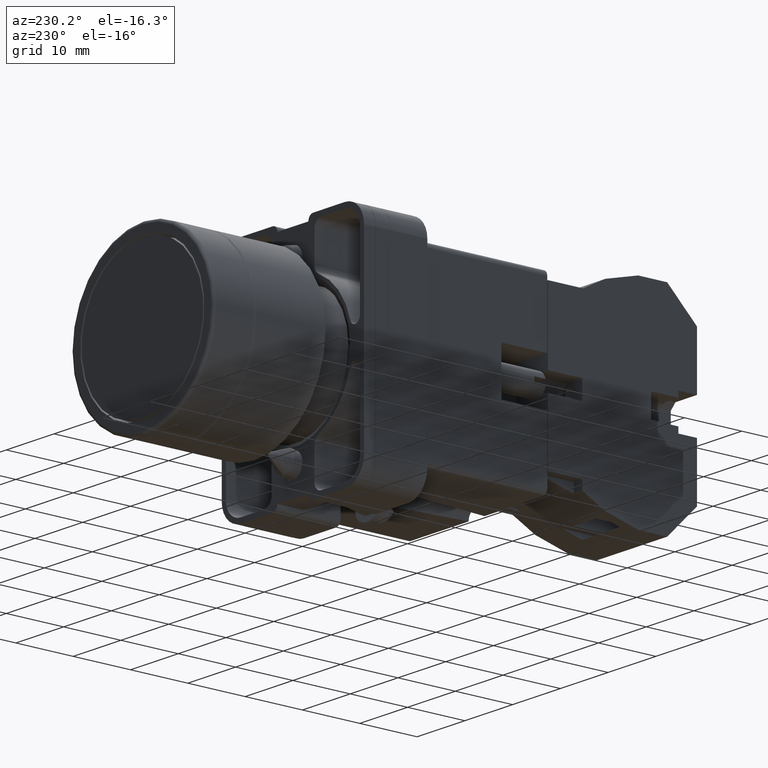
[diagram: clean part render]
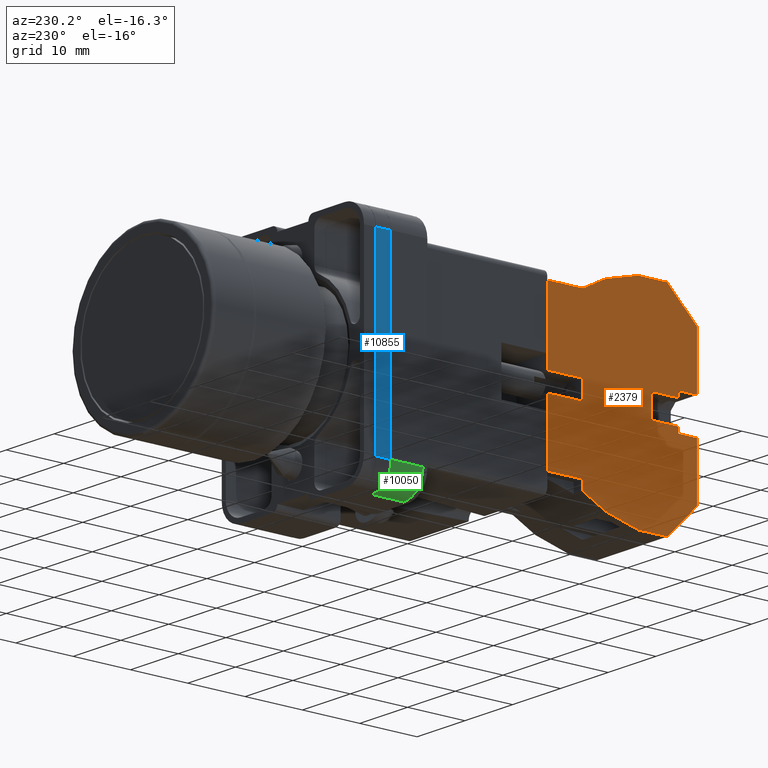
[diagram: same view with three faces highlighted in distinct colors, each labeled with its STEP entity id]
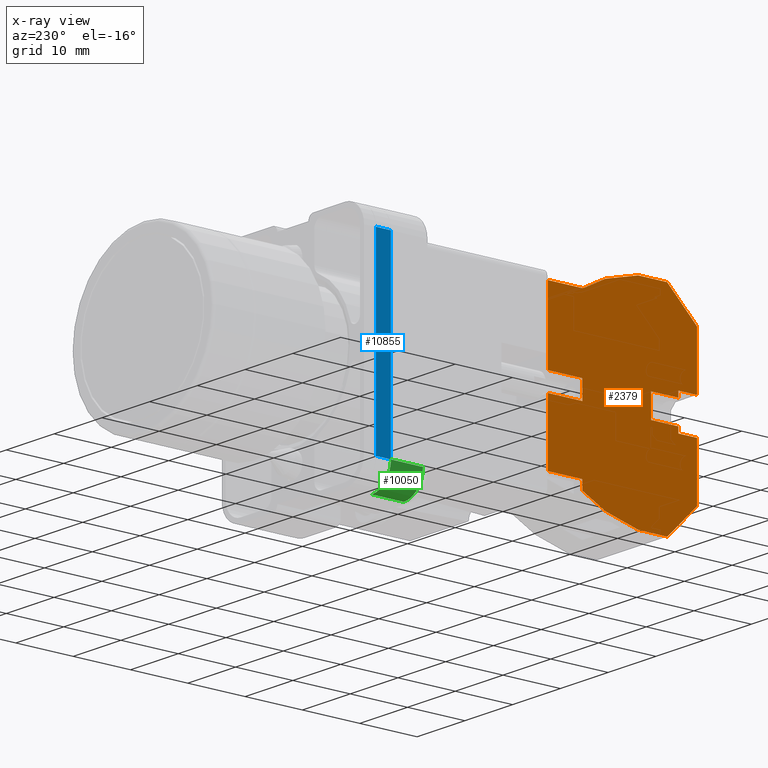
[diagram: x-ray of the same camera — body ghosted, the three highlighted faces saturated]
A machine part, auxiliary view with three faces highlighted in distinct colors.
The next image is the same camera in x-ray (body ghosted, the three faces saturated) — at least one of them is partly hidden behind the body in this view.
Their STEP definitions:

[orange] entity #2379 — the highlighted planar face has unit normal (-1, 0, -0).
#13 = CARTESIAN_POINT ( 'NONE',  ( 0.2598425196850383500, 0.07874015748031465400, -0.8956692913385810900 ) ) ;
#50 = CARTESIAN_POINT ( 'NONE',  ( 0.2598425196850393500, -0.4948044124201464400, -1.023622047244092900 ) ) ;
#67 = DIRECTION ( 'NONE',  ( 0.0000000000000000000, 1.000000000000000000, 1.380266588722641500E-016 ) ) ;
#92 = LINE ( 'NONE', #11499, #8486 ) ;
#273 = VERTEX_POINT ( 'NONE', #8449 ) ;
#291 = ORIENTED_EDGE ( 'NONE', *, *, #1015, .F. ) ;
#331 = CARTESIAN_POINT ( 'NONE',  ( 0.2598425196850393500, -0.6393838401749258900, -0.3953655489188578900 ) ) ;
#428 = CARTESIAN_POINT ( 'NONE',  ( 0.2598425196850241400, -0.5577858387056741100, -0.2362204724409449100 ) ) ;
#512 = ORIENTED_EDGE ( 'NONE', *, *, #8279, .F. ) ;
#638 = CARTESIAN_POINT ( 'NONE',  ( 0.2598425196850393500, 0.4948044124201465600, -1.023622047244091600 ) ) ;
#660 = DIRECTION ( 'NONE',  ( 0.0000000000000000000, 0.2588190451025197400, -0.9659258262890685300 ) ) ;
#838 = CARTESIAN_POINT ( 'NONE',  ( 0.2598425196850393500, -0.6995288218689645900, 0.0000000000000000000 ) ) ;
#871 = LINE ( 'NONE', #1747, #13055 ) ;
#997 = DIRECTION ( 'NONE',  ( -0.0000000000000000000, -0.0000000000000000000, 1.000000000000000000 ) ) ;
#1015 = EDGE_CURVE ( 'NONE', #6109, #6271, #5316, .T. ) ;
#1173 = VECTOR ( 'NONE', #7162, 39.37007874015748100 ) ;
#1330 = CARTESIAN_POINT ( 'NONE',  ( 0.2598425196850383500, 0.1181102362204726100, -1.023622047244092900 ) ) ;
#1347 = ORIENTED_EDGE ( 'NONE', *, *, #5021, .F. ) ;
#1349 = VECTOR ( 'NONE', #9872, 39.37007874015748100 ) ;
#1352 = CARTESIAN_POINT ( 'NONE',  ( 0.2598425196850393500, 0.7592132298321191400, -0.7592132298321189200 ) ) ;
#1370 = ORIENTED_EDGE ( 'NONE', *, *, #12649, .F. ) ;
#1410 = VECTOR ( 'NONE', #4995, 39.37007874015748100 ) ;
#1539 = VECTOR ( 'NONE', #9555, 39.37007874015748100 ) ;
#1612 = VECTOR ( 'NONE', #3023, 39.37007874015748900 ) ;
#1732 = EDGE_CURVE ( 'NONE', #3334, #13837, #4788, .T. ) ;
#1747 = CARTESIAN_POINT ( 'NONE',  ( 0.2598425196850383500, -0.07874015748031520900, -0.7086614173228329400 ) ) ;
#1755 = VERTEX_POINT ( 'NONE', #4335 ) ;
#1768 = ORIENTED_EDGE ( 'NONE', *, *, #1732, .F. ) ;
#1798 = VECTOR ( 'NONE', #1853, 39.37007874015748100 ) ;
#1853 = DIRECTION ( 'NONE',  ( 0.0000000000000000000, 0.4648420457246171800, 0.8853936257544171600 ) ) ;
#1875 = CARTESIAN_POINT ( 'NONE',  ( 0.2598425196850241400, 0.06299212598425156500, -0.2362204724409449100 ) ) ;
#1876 = CARTESIAN_POINT ( 'NONE',  ( 0.2598425196850384100, -0.1181102362204745300, -1.023622047244092900 ) ) ;
#1922 = CARTESIAN_POINT ( 'NONE',  ( 0.2598425196850393500, -0.7592132298321195800, -0.7592132298321195800 ) ) ;
#2013 = VECTOR ( 'NONE', #5988, 39.37007874015748900 ) ;
#2129 = ORIENTED_EDGE ( 'NONE', *, *, #11041, .F. ) ;
#2218 = DIRECTION ( 'NONE',  ( 1.000000000000000000, -0.0000000000000000000, 0.0000000000000000000 ) ) ;
#2229 = VECTOR ( 'NONE', #7375, 39.37007874015748100 ) ;
#2241 = LINE ( 'NONE', #5281, #7760 ) ;
#2309 = DIRECTION ( 'NONE',  ( -0.0000000000000000000, -0.0000000000000000000, 1.000000000000000000 ) ) ;
#2379 = ADVANCED_FACE ( 'NONE', ( #9128 ), #8840, .T. ) ;
#2425 = VECTOR ( 'NONE', #2681, 39.37007874015748100 ) ;
#2522 = DIRECTION ( 'NONE',  ( 0.0000000000000000000, 0.0000000000000000000, 1.000000000000000000 ) ) ;
#2592 = DIRECTION ( 'NONE',  ( -0.0000000000000000000, -0.0000000000000000000, 1.000000000000000000 ) ) ;
#2646 = VECTOR ( 'NONE', #10418, 39.37007874015748100 ) ;
#2650 = VERTEX_POINT ( 'NONE', #7054 ) ;
#2666 = CARTESIAN_POINT ( 'NONE',  ( 0.2598425196850393500, -0.4616588017403119900, 0.1237011031050369300 ) ) ;
#2681 = DIRECTION ( 'NONE',  ( 0.0000000000000000000, 0.0000000000000000000, -1.000000000000000000 ) ) ;
#2690 = DIRECTION ( 'NONE',  ( 1.445602896647325400E-016, -1.000000000000000000, 0.0000000000000000000 ) ) ;
#2695 = CARTESIAN_POINT ( 'NONE',  ( 0.2598425196850393500, -0.4977118570381174900, 0.1333614901567568600 ) ) ;
#2705 = LINE ( 'NONE', #10451, #5252 ) ;
#2730 = EDGE_CURVE ( 'NONE', #8224, #7018, #871, .T. ) ;
#2796 = VERTEX_POINT ( 'NONE', #7867 ) ;
#2807 = CARTESIAN_POINT ( 'NONE',  ( 0.2598425196850393500, 1.554158442419976800E-015, -1.023622047244092200 ) ) ;
#3023 = DIRECTION ( 'NONE',  ( 0.0000000000000000000, -0.7071067811865474600, 0.7071067811865474600 ) ) ;
#3065 = ORIENTED_EDGE ( 'NONE', *, *, #3629, .T. ) ;
#3125 = ORIENTED_EDGE ( 'NONE', *, *, #6125, .F. ) ;
#3154 = CARTESIAN_POINT ( 'NONE',  ( 0.2598425196850383500, 0.1181102362204726100, -0.8956692913385810900 ) ) ;
#3325 = VERTEX_POINT ( 'NONE', #1330 ) ;
#3334 = VERTEX_POINT ( 'NONE', #7894 ) ;
#3442 = DIRECTION ( 'NONE',  ( 0.0000000000000000000, 0.4648420457246347200, -0.8853936257544079400 ) ) ;
#3509 = ORIENTED_EDGE ( 'NONE', *, *, #11212, .T. ) ;
#3557 = VECTOR ( 'NONE', #11323, 39.37007874015748900 ) ;
#3591 = CARTESIAN_POINT ( 'NONE',  ( 0.2598425196850241400, 0.5577858387056733300, 0.0000000000000000000 ) ) ;
#3629 = EDGE_CURVE ( 'NONE', #5591, #12239, #8241, .T. ) ;
#3823 = EDGE_CURVE ( 'NONE', #7155, #12796, #13390, .T. ) ;
#4019 = EDGE_CURVE ( 'NONE', #1755, #2650, #8949, .T. ) ;
#4098 = EDGE_CURVE ( 'NONE', #10101, #4836, #10525, .T. ) ;
#4139 = VECTOR ( 'NONE', #660, 39.37007874015748100 ) ;
#4253 = VERTEX_POINT ( 'NONE', #3591 ) ;
#4335 = CARTESIAN_POINT ( 'NONE',  ( 0.2598425196850393500, 0.6995288218689655900, -0.6198296764213095900 ) ) ;
#4343 = VECTOR ( 'NONE', #2522, 39.37007874015748100 ) ;
#4378 = EDGE_CURVE ( 'NONE', #5591, #7976, #8935, .T. ) ;
#4408 = VECTOR ( 'NONE', #7939, 39.37007874015748900 ) ;
#4499 = LINE ( 'NONE', #1922, #1612 ) ;
#4607 = CARTESIAN_POINT ( 'NONE',  ( 0.2598425196850241400, 0.06299212598425156500, -0.2362204724409449100 ) ) ;
#4788 = LINE ( 'NONE', #838, #2229 ) ;
#4835 = EDGE_CURVE ( 'NONE', #8125, #4836, #12851, .T. ) ;
#4836 = VERTEX_POINT ( 'NONE', #8692 ) ;
#4924 = ORIENTED_EDGE ( 'NONE', *, *, #4835, .T. ) ;
#4926 = VECTOR ( 'NONE', #13319, 39.37007874015748100 ) ;
#4995 = DIRECTION ( 'NONE',  ( 0.0000000000000000000, -1.000000000000000000, -1.518293247594904000E-015 ) ) ;
#5021 = EDGE_CURVE ( 'NONE', #6360, #273, #7338, .T. ) ;
#5112 = CARTESIAN_POINT ( 'NONE',  ( 0.2598425196850383500, -0.07874015748031520900, -0.7086614173228329400 ) ) ;
#5188 = EDGE_CURVE ( 'NONE', #6364, #9400, #2705, .T. ) ;
#5252 = VECTOR ( 'NONE', #2690, 39.37007874015748100 ) ;
#5281 = CARTESIAN_POINT ( 'NONE',  ( 0.2598425196850393500, 1.554158442419976800E-015, -1.023622047244092200 ) ) ;
#5316 = LINE ( 'NONE', #13810, #2425 ) ;
#5543 = EDGE_LOOP ( 'NONE', ( #10078, #11393, #11339, #5695, #11175, #5911, #1347, #7873, #512, #9989, #12475, #4924, #12134, #1370, #13566, #3065, #11504, #6555, #3125, #1768, #6395, #2129, #291, #14334, #10272, #7739, #3509, #11699 ) ) ;
#5591 = VERTEX_POINT ( 'NONE', #12365 ) ;
#5695 = ORIENTED_EDGE ( 'NONE', *, *, #4019, .F. ) ;
#5757 = CARTESIAN_POINT ( 'NONE',  ( 0.2598425196850241400, 0.0000000000000000000, -0.2362204724409449100 ) ) ;
#5911 = ORIENTED_EDGE ( 'NONE', *, *, #9512, .F. ) ;
#5919 = CARTESIAN_POINT ( 'NONE',  ( 0.2598425196850393500, -0.5604642668738533100, -0.2450459128388126900 ) ) ;
#5988 = DIRECTION ( 'NONE',  ( 0.0000000000000000000, 0.2588190451025187400, 0.9659258262890687600 ) ) ;
#6001 = VECTOR ( 'NONE', #12268, 39.37007874015748100 ) ;
#6109 = VERTEX_POINT ( 'NONE', #9319 ) ;
#6125 = EDGE_CURVE ( 'NONE', #13837, #8576, #10856, .T. ) ;
#6271 = VERTEX_POINT ( 'NONE', #1876 ) ;
#6317 = DIRECTION ( 'NONE',  ( 0.0000000000000000000, 1.000000000000000000, 1.380266588722641500E-016 ) ) ;
#6360 = VERTEX_POINT ( 'NONE', #12029 ) ;
#6364 = VERTEX_POINT ( 'NONE', #3154 ) ;
#6395 = ORIENTED_EDGE ( 'NONE', *, *, #14173, .F. ) ;
#6426 = CARTESIAN_POINT ( 'NONE',  ( 0.2598425196850241400, -0.06299212598425235600, -0.2362204724409449100 ) ) ;
#6555 = ORIENTED_EDGE ( 'NONE', *, *, #7609, .F. ) ;
#6659 = CARTESIAN_POINT ( 'NONE',  ( 0.2598425196850318000, -0.4921259842519683500, -0.2362204724409449100 ) ) ;
#6815 = CARTESIAN_POINT ( 'NONE',  ( 0.2598425196850393500, 0.4616588017403134300, 0.1237011031050346800 ) ) ;
#6897 = CARTESIAN_POINT ( 'NONE',  ( 0.2598425196850318000, -0.4921259842519683500, 0.0000000000000000000 ) ) ;
#6928 = LINE ( 'NONE', #2666, #2646 ) ;
#7018 = VERTEX_POINT ( 'NONE', #8806 ) ;
#7054 = CARTESIAN_POINT ( 'NONE',  ( 0.2598425196850393500, 0.6995288218689655900, -0.8188976377952724700 ) ) ;
#7155 = VERTEX_POINT ( 'NONE', #4607 ) ;
#7162 = DIRECTION ( 'NONE',  ( 1.164969743826202400E-013, 1.000000000000000000, 0.0000000000000000000 ) ) ;
#7306 = VECTOR ( 'NONE', #2309, 39.37007874015748100 ) ;
#7308 = CARTESIAN_POINT ( 'NONE',  ( 0.2598425196850393500, -0.6995288218689645900, -0.6198296764213121500 ) ) ;
#7309 = CARTESIAN_POINT ( 'NONE',  ( 0.2598425196850393500, -0.3385070961627993400, 0.1777201986726979200 ) ) ;
#7338 = LINE ( 'NONE', #6815, #4408 ) ;
#7375 = DIRECTION ( 'NONE',  ( -0.0000000000000000000, 0.0000000000000000000, 1.000000000000000000 ) ) ;
#7379 = CARTESIAN_POINT ( 'NONE',  ( 0.2598425196850393500, 0.07874015748031469600, -0.7086614173228329400 ) ) ;
#7609 = EDGE_CURVE ( 'NONE', #8576, #11633, #13657, .T. ) ;
#7718 = CARTESIAN_POINT ( 'NONE',  ( 0.2598425196850393500, -9.426696277809412200E-033, 6.829619984160658000E-017 ) ) ;
#7739 = ORIENTED_EDGE ( 'NONE', *, *, #11969, .F. ) ;
#7760 = VECTOR ( 'NONE', #14258, 39.37007874015748100 ) ;
#7793 = LINE ( 'NONE', #14195, #11143 ) ;
#7867 = CARTESIAN_POINT ( 'NONE',  ( 0.2598425196850393500, 0.6393838401749257800, -0.3953655489188523900 ) ) ;
#7873 = ORIENTED_EDGE ( 'NONE', *, *, #13601, .T. ) ;
#7894 = CARTESIAN_POINT ( 'NONE',  ( 0.2598425196850393500, -0.6995288218689645900, -0.8188976377952748000 ) ) ;
#7939 = DIRECTION ( 'NONE',  ( 0.0000000000000000000, 0.2588190451025166300, -0.9659258262890693100 ) ) ;
#7976 = VERTEX_POINT ( 'NONE', #11357 ) ;
#8062 = CARTESIAN_POINT ( 'NONE',  ( 0.2598425196850383500, 0.1181102362204726100, -0.8956692913385810900 ) ) ;
#8079 = DIRECTION ( 'NONE',  ( 1.445602896647325400E-016, -1.000000000000000000, 0.0000000000000000000 ) ) ;
#8125 = VERTEX_POINT ( 'NONE', #11694 ) ;
#8128 = LINE ( 'NONE', #11645, #4139 ) ;
#8224 = VERTEX_POINT ( 'NONE', #5112 ) ;
#8241 = LINE ( 'NONE', #428, #13912 ) ;
#8279 = EDGE_CURVE ( 'NONE', #12796, #4253, #7793, .T. ) ;
#8449 = CARTESIAN_POINT ( 'NONE',  ( 0.2598425196850393500, 0.5604642668738515400, -0.2450459128388111600 ) ) ;
#8486 = VECTOR ( 'NONE', #8079, 39.37007874015748100 ) ;
#8576 = VERTEX_POINT ( 'NONE', #331 ) ;
#8586 = CARTESIAN_POINT ( 'NONE',  ( 0.2598425196850241400, 0.06299212598425156500, 0.0000000000000000000 ) ) ;
#8692 = CARTESIAN_POINT ( 'NONE',  ( 0.2598425196850241400, -0.06299212598425235600, 0.0000000000000000000 ) ) ;
#8757 = CARTESIAN_POINT ( 'NONE',  ( 0.2598425196850383500, 0.07874015748031465400, -0.7086614173228329400 ) ) ;
#8806 = CARTESIAN_POINT ( 'NONE',  ( 0.2598425196850383500, -0.07874015748031520900, -0.8956692913385810900 ) ) ;
#8840 = PLANE ( 'NONE',  #10595 ) ;
#8908 = CARTESIAN_POINT ( 'NONE',  ( 0.2598425196850383500, 0.07874015748031465400, -0.7086614173228329400 ) ) ;
#8935 = LINE ( 'NONE', #13928, #1173 ) ;
#8949 = LINE ( 'NONE', #12160, #4926 ) ;
#8999 = VECTOR ( 'NONE', #11475, 39.37007874015748100 ) ;
#9042 = VECTOR ( 'NONE', #3442, 39.37007874015748900 ) ;
#9128 = FACE_OUTER_BOUND ( 'NONE', #5543, .T. ) ;
#9146 = CARTESIAN_POINT ( 'NONE',  ( 0.2598425196850241400, 0.5577858387056733300, -19685.03937007874300 ) ) ;
#9319 = CARTESIAN_POINT ( 'NONE',  ( 0.2598425196850384100, -0.1181102362204745300, -0.8956692913385810900 ) ) ;
#9400 = VERTEX_POINT ( 'NONE', #13 ) ;
#9473 = DIRECTION ( 'NONE',  ( 0.0000000000000000000, 0.0000000000000000000, -1.000000000000000000 ) ) ;
#9512 = EDGE_CURVE ( 'NONE', #273, #2796, #12774, .T. ) ;
#9548 = VECTOR ( 'NONE', #12494, 39.37007874015748100 ) ;
#9555 = DIRECTION ( 'NONE',  ( -0.0000000000000000000, -0.0000000000000000000, 1.000000000000000000 ) ) ;
#9706 = LINE ( 'NONE', #8062, #8999 ) ;
#9822 = VECTOR ( 'NONE', #997, 39.37007874015748100 ) ;
#9841 = VERTEX_POINT ( 'NONE', #7379 ) ;
#9872 = DIRECTION ( 'NONE',  ( 0.0000000000000000000, -1.000000000000000000, 0.0000000000000000000 ) ) ;
#9979 = DIRECTION ( 'NONE',  ( 0.0000000000000000000, 0.0000000000000000000, -1.000000000000000000 ) ) ;
#9989 = ORIENTED_EDGE ( 'NONE', *, *, #3823, .F. ) ;
#10073 = EDGE_CURVE ( 'NONE', #8125, #7155, #12564, .T. ) ;
#10078 = ORIENTED_EDGE ( 'NONE', *, *, #10739, .T. ) ;
#10101 = VERTEX_POINT ( 'NONE', #6897 ) ;
#10160 = LINE ( 'NONE', #8757, #1349 ) ;
#10170 = EDGE_CURVE ( 'NONE', #7018, #6109, #92, .T. ) ;
#10226 = LINE ( 'NONE', #2807, #1410 ) ;
#10268 = EDGE_CURVE ( 'NONE', #2796, #1755, #8128, .T. ) ;
#10272 = ORIENTED_EDGE ( 'NONE', *, *, #2730, .F. ) ;
#10282 = LINE ( 'NONE', #9146, #4343 ) ;
#10318 = LINE ( 'NONE', #6659, #7306 ) ;
#10418 = DIRECTION ( 'NONE',  ( 0.0000000000000000000, 0.2588190451025217900, 0.9659258262890679800 ) ) ;
#10451 = CARTESIAN_POINT ( 'NONE',  ( 0.2598425196850383500, 3.756290991288310800E-017, -0.8956692913385810900 ) ) ;
#10525 = LINE ( 'NONE', #7718, #12846 ) ;
#10595 = AXIS2_PLACEMENT_3D ( 'NONE', #12202, #2218, #9979 ) ;
#10739 = EDGE_CURVE ( 'NONE', #6364, #3325, #9706, .T. ) ;
#10856 = LINE ( 'NONE', #2695, #2013 ) ;
#10905 = EDGE_CURVE ( 'NONE', #11700, #3325, #10226, .T. ) ;
#11041 = EDGE_CURVE ( 'NONE', #6271, #12568, #2241, .T. ) ;
#11143 = VECTOR ( 'NONE', #6317, 39.37007874015748100 ) ;
#11175 = ORIENTED_EDGE ( 'NONE', *, *, #10268, .F. ) ;
#11212 = EDGE_CURVE ( 'NONE', #9841, #9400, #11991, .T. ) ;
#11299 = CARTESIAN_POINT ( 'NONE',  ( 0.2598425196850393500, 0.3385070961627866800, 0.1777201986726998100 ) ) ;
#11323 = DIRECTION ( 'NONE',  ( 0.0000000000000000000, -0.7071067811865473500, -0.7071067811865475700 ) ) ;
#11339 = ORIENTED_EDGE ( 'NONE', *, *, #11515, .F. ) ;
#11357 = CARTESIAN_POINT ( 'NONE',  ( 0.2598425196850318000, -0.4921259842519683500, -0.2362204724409449100 ) ) ;
#11393 = ORIENTED_EDGE ( 'NONE', *, *, #10905, .F. ) ;
#11475 = DIRECTION ( 'NONE',  ( 0.0000000000000000000, 0.0000000000000000000, -1.000000000000000000 ) ) ;
#11499 = CARTESIAN_POINT ( 'NONE',  ( 0.2598425196850383500, 3.756290991288310800E-017, -0.8956692913385810900 ) ) ;
#11504 = ORIENTED_EDGE ( 'NONE', *, *, #13690, .F. ) ;
#11515 = EDGE_CURVE ( 'NONE', #2650, #11700, #12481, .T. ) ;
#11633 = VERTEX_POINT ( 'NONE', #5919 ) ;
#11645 = CARTESIAN_POINT ( 'NONE',  ( 0.2598425196850393500, 0.4977118570381181600, 0.1333614901567575800 ) ) ;
#11694 = CARTESIAN_POINT ( 'NONE',  ( 0.2598425196850393500, -0.06299212598425235600, -0.2362204724409449100 ) ) ;
#11699 = ORIENTED_EDGE ( 'NONE', *, *, #5188, .F. ) ;
#11700 = VERTEX_POINT ( 'NONE', #638 ) ;
#11969 = EDGE_CURVE ( 'NONE', #9841, #8224, #10160, .T. ) ;
#11991 = LINE ( 'NONE', #8908, #6001 ) ;
#12029 = CARTESIAN_POINT ( 'NONE',  ( 0.2598425196850317500, 0.5577858387086644900, -0.2350498828538740100 ) ) ;
#12134 = ORIENTED_EDGE ( 'NONE', *, *, #4098, .F. ) ;
#12160 = CARTESIAN_POINT ( 'NONE',  ( 0.2598425196850393500, 0.6995288218689655900, 0.0000000000000000000 ) ) ;
#12202 = CARTESIAN_POINT ( 'NONE',  ( 0.2598425196850393500, 0.0000000000000000000, 0.0000000000000000000 ) ) ;
#12239 = VERTEX_POINT ( 'NONE', #12702 ) ;
#12268 = DIRECTION ( 'NONE',  ( 0.0000000000000000000, 0.0000000000000000000, -1.000000000000000000 ) ) ;
#12365 = CARTESIAN_POINT ( 'NONE',  ( 0.2598425196850241400, -0.5577858387056741100, -0.2362204724409449100 ) ) ;
#12475 = ORIENTED_EDGE ( 'NONE', *, *, #10073, .F. ) ;
#12481 = LINE ( 'NONE', #1352, #3557 ) ;
#12494 = DIRECTION ( 'NONE',  ( 0.0000000000000000000, 1.000000000000000000, -0.0000000000000000000 ) ) ;
#12564 = LINE ( 'NONE', #5757, #9548 ) ;
#12568 = VERTEX_POINT ( 'NONE', #50 ) ;
#12649 = EDGE_CURVE ( 'NONE', #7976, #10101, #10318, .T. ) ;
#12702 = CARTESIAN_POINT ( 'NONE',  ( 0.2598425196850241400, -0.5577858387056741100, -0.2350498828300582600 ) ) ;
#12774 = LINE ( 'NONE', #11299, #9042 ) ;
#12796 = VERTEX_POINT ( 'NONE', #8586 ) ;
#12846 = VECTOR ( 'NONE', #67, 39.37007874015748100 ) ;
#12851 = LINE ( 'NONE', #6426, #9822 ) ;
#13055 = VECTOR ( 'NONE', #9473, 39.37007874015748100 ) ;
#13319 = DIRECTION ( 'NONE',  ( 0.0000000000000000000, 0.0000000000000000000, -1.000000000000000000 ) ) ;
#13390 = LINE ( 'NONE', #1875, #1539 ) ;
#13566 = ORIENTED_EDGE ( 'NONE', *, *, #4378, .F. ) ;
#13601 = EDGE_CURVE ( 'NONE', #6360, #4253, #10282, .T. ) ;
#13657 = LINE ( 'NONE', #7309, #1798 ) ;
#13690 = EDGE_CURVE ( 'NONE', #11633, #12239, #6928, .T. ) ;
#13810 = CARTESIAN_POINT ( 'NONE',  ( 0.2598425196850384100, -0.1181102362204745300, -0.8956692913385810900 ) ) ;
#13837 = VERTEX_POINT ( 'NONE', #7308 ) ;
#13912 = VECTOR ( 'NONE', #2592, 39.37007874015748100 ) ;
#13928 = CARTESIAN_POINT ( 'NONE',  ( 0.2598425196850891500, -3.027086735926932700E-014, -0.2362204724409449100 ) ) ;
#14173 = EDGE_CURVE ( 'NONE', #12568, #3334, #4499, .T. ) ;
#14195 = CARTESIAN_POINT ( 'NONE',  ( 0.2598425196850393500, -9.426696277809412200E-033, 6.829619984160658000E-017 ) ) ;
#14258 = DIRECTION ( 'NONE',  ( 0.0000000000000000000, -1.000000000000000000, -1.518293247594904000E-015 ) ) ;
#14334 = ORIENTED_EDGE ( 'NONE', *, *, #10170, .F. ) ;

[blue] entity #10855 — the highlighted planar face has unit normal (-1, 0, -0).
#77 = VECTOR ( 'NONE', #12233, 39.37007874015748100 ) ;
#279 = DIRECTION ( 'NONE',  ( -0.0000000000000000000, -0.0000000000000000000, 1.000000000000000000 ) ) ;
#355 = DIRECTION ( 'NONE',  ( -0.0000000000000000000, -0.0000000000000000000, 1.000000000000000000 ) ) ;
#819 = EDGE_CURVE ( 'NONE', #2917, #9182, #2251, .T. ) ;
#893 = EDGE_CURVE ( 'NONE', #2917, #12414, #10048, .T. ) ;
#972 = AXIS2_PLACEMENT_3D ( 'NONE', #13907, #3855, #11669 ) ;
#1041 = ORIENTED_EDGE ( 'NONE', *, *, #8853, .F. ) ;
#2251 = LINE ( 'NONE', #10044, #77 ) ;
#2917 = VERTEX_POINT ( 'NONE', #5908 ) ;
#2968 = CARTESIAN_POINT ( 'NONE',  ( -0.5881002253755396300, 0.6299199999999968200, -0.08070866141732283000 ) ) ;
#3534 = CARTESIAN_POINT ( 'NONE',  ( -0.5881002253755396300, 0.6299199999999968200, -0.1830708661417322600 ) ) ;
#3855 = DIRECTION ( 'NONE',  ( -1.000000000000000000, 0.0000000000000000000, -0.0000000000000000000 ) ) ;
#5908 = CARTESIAN_POINT ( 'NONE',  ( -0.5881002253755396300, 0.6299199999999968200, -0.1830708661417322600 ) ) ;
#6707 = VECTOR ( 'NONE', #279, 39.37007874015748100 ) ;
#6860 = CARTESIAN_POINT ( 'NONE',  ( -0.5881002253755396300, -0.6299199999999968200, -0.1830708661417322600 ) ) ;
#7645 = ORIENTED_EDGE ( 'NONE', *, *, #819, .T. ) ;
#7724 = DIRECTION ( 'NONE',  ( 0.0000000000000000000, -1.000000000000000000, 0.0000000000000000000 ) ) ;
#8043 = ORIENTED_EDGE ( 'NONE', *, *, #12152, .T. ) ;
#8065 = CARTESIAN_POINT ( 'NONE',  ( -0.5881002253755396300, -0.6299199999999968200, -0.08070866141732283000 ) ) ;
#8391 = VECTOR ( 'NONE', #355, 39.37007874015748100 ) ;
#8396 = CARTESIAN_POINT ( 'NONE',  ( -0.5881002253755395200, -0.6299199999999968200, -0.1830708661417322600 ) ) ;
#8853 = EDGE_CURVE ( 'NONE', #12414, #13151, #11338, .T. ) ;
#8941 = EDGE_LOOP ( 'NONE', ( #1041, #10047, #7645, #8043 ) ) ;
#9182 = VERTEX_POINT ( 'NONE', #8396 ) ;
#10028 = CARTESIAN_POINT ( 'NONE',  ( -0.5881002253755396300, 0.0000000000000000000, -0.08070866141732283000 ) ) ;
#10044 = CARTESIAN_POINT ( 'NONE',  ( -0.5881002253755396300, 0.0000000000000000000, -0.1830708661417322600 ) ) ;
#10047 = ORIENTED_EDGE ( 'NONE', *, *, #893, .F. ) ;
#10048 = LINE ( 'NONE', #3534, #6707 ) ;
#10530 = PLANE ( 'NONE',  #972 ) ;
#10581 = FACE_OUTER_BOUND ( 'NONE', #8941, .T. ) ;
#10679 = LINE ( 'NONE', #6860, #8391 ) ;
#10855 = ADVANCED_FACE ( 'NONE', ( #10581 ), #10530, .T. ) ;
#11338 = LINE ( 'NONE', #10028, #14178 ) ;
#11669 = DIRECTION ( 'NONE',  ( -0.0000000000000000000, 0.0000000000000000000, 1.000000000000000000 ) ) ;
#12152 = EDGE_CURVE ( 'NONE', #9182, #13151, #10679, .T. ) ;
#12233 = DIRECTION ( 'NONE',  ( 0.0000000000000000000, -1.000000000000000000, 0.0000000000000000000 ) ) ;
#12414 = VERTEX_POINT ( 'NONE', #2968 ) ;
#13151 = VERTEX_POINT ( 'NONE', #8065 ) ;
#13907 = CARTESIAN_POINT ( 'NONE',  ( -0.5881002253755396300, 0.0000000000000000000, -0.1830708661417322600 ) ) ;
#14178 = VECTOR ( 'NONE', #7724, 39.37007874015748100 ) ;

[green] entity #10050 — the highlighted cylindrical surface (edge-blend (fillet) strip) has radius 4 mm, axis along (0, 1, 0).
#617 = VECTOR ( 'NONE', #7897, 39.37007874015748100 ) ;
#759 = CARTESIAN_POINT ( 'NONE',  ( -0.4312471367406947600, 0.6299199999999968200, -0.4035433070866141200 ) ) ;
#1095 = CYLINDRICAL_SURFACE ( 'NONE', #13994, 0.1574800000000025300 ) ;
#1124 = CIRCLE ( 'NONE', #9530, 0.1574800000000025600 ) ;
#1654 = VERTEX_POINT ( 'NONE', #12886 ) ;
#1848 = DIRECTION ( 'NONE',  ( -1.000000000000000000, 0.0000000000000000000, 0.0000000000000000000 ) ) ;
#2406 = DIRECTION ( 'NONE',  ( -0.0000000000000000000, -0.0000000000000000000, 1.000000000000000000 ) ) ;
#3526 = CIRCLE ( 'NONE', #5156, 0.1574800000000025600 ) ;
#4082 = CARTESIAN_POINT ( 'NONE',  ( -0.4312471367406947600, 0.7873999999999993200, -0.4035433070866141200 ) ) ;
#4213 = CARTESIAN_POINT ( 'NONE',  ( -0.4312471367406947600, 0.6299199999999968200, -0.1830708661417322600 ) ) ;
#4886 = LINE ( 'NONE', #5623, #7130 ) ;
#5156 = AXIS2_PLACEMENT_3D ( 'NONE', #4213, #12036, #5305 ) ;
#5305 = DIRECTION ( 'NONE',  ( -1.000000000000000000, 0.0000000000000000000, 0.0000000000000000000 ) ) ;
#5623 = CARTESIAN_POINT ( 'NONE',  ( -0.5887271367406973200, 0.6299199999999968200, -0.4035433070866141200 ) ) ;
#5671 = DIRECTION ( 'NONE',  ( -0.0000000000000000000, -0.0000000000000000000, 1.000000000000000000 ) ) ;
#6294 = CARTESIAN_POINT ( 'NONE',  ( -0.5887271367406973200, 0.6299199999999968200, -0.1830708661417322600 ) ) ;
#6397 = LINE ( 'NONE', #9025, #617 ) ;
#6841 = CARTESIAN_POINT ( 'NONE',  ( -0.4312471367406947600, 0.7873999999999993200, -0.1830708661417322600 ) ) ;
#6898 = FACE_OUTER_BOUND ( 'NONE', #10924, .T. ) ;
#7130 = VECTOR ( 'NONE', #5671, 39.37007874015748100 ) ;
#7135 = EDGE_CURVE ( 'NONE', #1654, #11858, #4886, .T. ) ;
#7897 = DIRECTION ( 'NONE',  ( -0.0000000000000000000, -0.0000000000000000000, 1.000000000000000000 ) ) ;
#8004 = ORIENTED_EDGE ( 'NONE', *, *, #7135, .T. ) ;
#8442 = DIRECTION ( 'NONE',  ( 0.0000000000000000000, 0.0000000000000000000, -1.000000000000000000 ) ) ;
#9025 = CARTESIAN_POINT ( 'NONE',  ( -0.4312471367406947600, 0.7873999999999993200, -0.4035433070866141200 ) ) ;
#9026 = CARTESIAN_POINT ( 'NONE',  ( -0.4312471367406947600, 0.6299199999999968200, -0.4035433070866141200 ) ) ;
#9175 = ORIENTED_EDGE ( 'NONE', *, *, #9501, .F. ) ;
#9210 = EDGE_CURVE ( 'NONE', #1654, #11828, #1124, .T. ) ;
#9501 = EDGE_CURVE ( 'NONE', #11828, #13107, #6397, .T. ) ;
#9530 = AXIS2_PLACEMENT_3D ( 'NONE', #759, #8442, #1848 ) ;
#10050 = ADVANCED_FACE ( 'NONE', ( #6898 ), #1095, .T. ) ;
#10165 = DIRECTION ( 'NONE',  ( 1.000000000000000000, 0.0000000000000000000, 0.0000000000000000000 ) ) ;
#10271 = ORIENTED_EDGE ( 'NONE', *, *, #12470, .T. ) ;
#10924 = EDGE_LOOP ( 'NONE', ( #10271, #9175, #11140, #8004 ) ) ;
#11140 = ORIENTED_EDGE ( 'NONE', *, *, #9210, .F. ) ;
#11828 = VERTEX_POINT ( 'NONE', #4082 ) ;
#11858 = VERTEX_POINT ( 'NONE', #6294 ) ;
#12036 = DIRECTION ( 'NONE',  ( 0.0000000000000000000, 0.0000000000000000000, -1.000000000000000000 ) ) ;
#12470 = EDGE_CURVE ( 'NONE', #11858, #13107, #3526, .T. ) ;
#12886 = CARTESIAN_POINT ( 'NONE',  ( -0.5887271367406973200, 0.6299199999999968200, -0.4035433070866141200 ) ) ;
#13107 = VERTEX_POINT ( 'NONE', #6841 ) ;
#13994 = AXIS2_PLACEMENT_3D ( 'NONE', #9026, #2406, #10165 ) ;